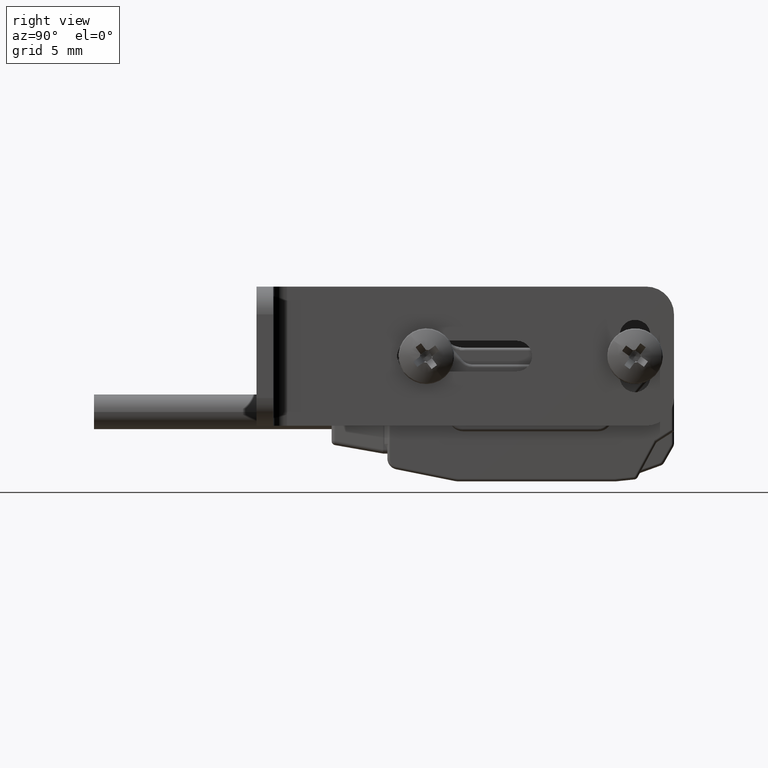
[diagram: clean part render]
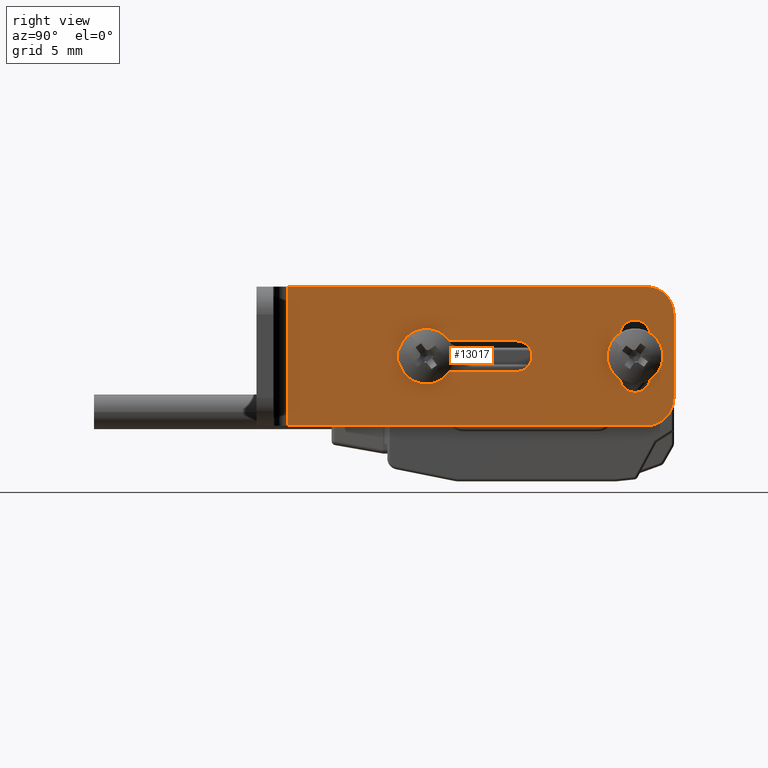
[diagram: same view with one face highlighted and labeled with its STEP entity id]
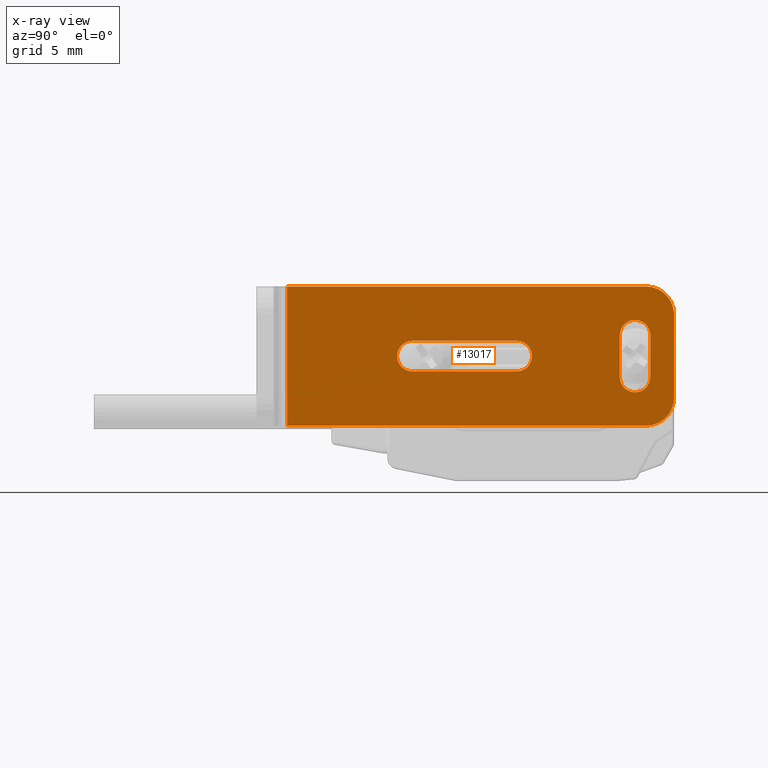
[diagram: x-ray of the same camera — body ghosted, the highlighted face saturated]
A machine part, right view. The second image highlights one B-rep face of the part: STEP entity #13017.
The next image is the same camera in x-ray: the body ghosted, the highlighted face saturated — about 0% of this face is hidden behind the body in this view.
In plain terms, the highlighted planar face has unit normal (-1, -0, -0).
Its self-contained STEP definition (entity closure, byte-faithful):
#209 = VERTEX_POINT ( 'NONE', #1152 ) ;
#247 = DIRECTION ( 'NONE',  ( 0.000000000000000000, 0.000000000000000000, 1.000000000000000000 ) ) ;
#256 = CARTESIAN_POINT ( 'NONE',  ( 4.800000000000002487, -13.55532692569723530, -2.999092722393029042 ) ) ;
#412 = ORIENTED_EDGE ( 'NONE', *, *, #3643, .F. ) ;
#755 = CARTESIAN_POINT ( 'NONE',  ( 4.800000000000002487, 12.54467307430276435, 3.500907277606976731 ) ) ;
#775 = VECTOR ( 'NONE', #5985, 1000.000000000000000 ) ;
#837 = EDGE_CURVE ( 'NONE', #209, #6389, #13950, .T. ) ;
#1146 = AXIS2_PLACEMENT_3D ( 'NONE', #18138, #10631, #4611 ) ;
#1152 = CARTESIAN_POINT ( 'NONE',  ( 4.800000000000002487, 14.24467307430276541, 5.000907277606970958 ) ) ;
#1165 = DIRECTION ( 'NONE',  ( -1.000000000000000000, -1.082107889691983941E-16, -3.869979201885204731E-18 ) ) ;
#1614 = EDGE_CURVE ( 'NONE', #1701, #16881, #1644, .T. ) ;
#1644 = LINE ( 'NONE', #15272, #18296 ) ;
#1701 = VERTEX_POINT ( 'NONE', #9439 ) ;
#1731 = VECTOR ( 'NONE', #9619, 1000.000000000000000 ) ;
#1848 = CARTESIAN_POINT ( 'NONE',  ( 4.800000000000002487, -15.75532692569723459, 0.9009072776069715349 ) ) ;
#1854 = CARTESIAN_POINT ( 'NONE',  ( 4.800000000000002487, 12.24467307430276719, 7.000907277606972734 ) ) ;
#1932 = LINE ( 'NONE', #1848, #1731 ) ;
#2054 = CARTESIAN_POINT ( 'NONE',  ( 4.800000000000002487, -15.75532692569723459, 3.100907277606971935 ) ) ;
#2156 = CARTESIAN_POINT ( 'NONE',  ( 4.800000000000002487, 10.34467307430276328, 3.500907277606976731 ) ) ;
#2208 = CARTESIAN_POINT ( 'NONE',  ( 4.800000000000002487, 14.24467307430276541, 7.000907277606972734 ) ) ;
#2518 = DIRECTION ( 'NONE',  ( -3.869979201885200109E-18, -6.591949208711869424E-17, 1.000000000000000000 ) ) ;
#2520 = DIRECTION ( 'NONE',  ( 1.000000000000000000, 1.082107889691983941E-16, 0.000000000000000000 ) ) ;
#2634 = FACE_BOUND ( 'NONE', #18786, .T. ) ;
#2724 = VECTOR ( 'NONE', #3358, 1000.000000000000000 ) ;
#2915 = DIRECTION ( 'NONE',  ( 0.000000000000000000, 0.000000000000000000, 1.000000000000000000 ) ) ;
#2937 = ORIENTED_EDGE ( 'NONE', *, *, #13461, .T. ) ;
#2960 = VERTEX_POINT ( 'NONE', #11131 ) ;
#3358 = DIRECTION ( 'NONE',  ( 1.082107889691983941E-16, -1.000000000000000000, 7.864079757761529603E-17 ) ) ;
#3643 = EDGE_CURVE ( 'NONE', #209, #8556, #15759, .T. ) ;
#3934 = CIRCLE ( 'NONE', #16262, 2.000000000000000000 ) ;
#4228 = ORIENTED_EDGE ( 'NONE', *, *, #15626, .F. ) ;
#4234 = CIRCLE ( 'NONE', #15288, 1.100000000000000311 ) ;
#4528 = EDGE_CURVE ( 'NONE', #2960, #14912, #13009, .T. ) ;
#4611 = DIRECTION ( 'NONE',  ( 0.000000000000000000, 0.000000000000000000, 1.000000000000000000 ) ) ;
#4825 = ORIENTED_EDGE ( 'NONE', *, *, #9459, .T. ) ;
#4885 = CARTESIAN_POINT ( 'NONE',  ( 4.800000000000002487, -13.55532692569723530, -2.999092722393029042 ) ) ;
#4994 = DIRECTION ( 'NONE',  ( 3.869979201885200109E-18, 6.591949208711869424E-17, -1.000000000000000000 ) ) ;
#5058 = VERTEX_POINT ( 'NONE', #15449 ) ;
#5194 = AXIS2_PLACEMENT_3D ( 'NONE', #12710, #15788, #11325 ) ;
#5293 = ORIENTED_EDGE ( 'NONE', *, *, #4528, .F. ) ;
#5316 = ORIENTED_EDGE ( 'NONE', *, *, #6660, .T. ) ;
#5366 = CARTESIAN_POINT ( 'NONE',  ( 4.800000000000002487, 11.44467307430276826, 3.500907277606976731 ) ) ;
#5510 = CARTESIAN_POINT ( 'NONE',  ( 4.800000000000002487, 10.34467307430276328, 0.5009072776069739552 ) ) ;
#5585 = VECTOR ( 'NONE', #4994, 1000.000000000000000 ) ;
#5746 = VECTOR ( 'NONE', #19036, 1000.000000000000000 ) ;
#5845 = EDGE_CURVE ( 'NONE', #5058, #14119, #10565, .T. ) ;
#5886 = VERTEX_POINT ( 'NONE', #2156 ) ;
#5985 = DIRECTION ( 'NONE',  ( -1.082107889691983941E-16, 1.000000000000000000, 3.503003897882345018E-16 ) ) ;
#6389 = VERTEX_POINT ( 'NONE', #1854 ) ;
#6660 = EDGE_CURVE ( 'NONE', #11313, #16881, #13780, .T. ) ;
#6667 = CARTESIAN_POINT ( 'NONE',  ( 4.800000000000002487, 11.44467307430276826, 4.600907277606973267 ) ) ;
#6785 = AXIS2_PLACEMENT_3D ( 'NONE', #11169, #13770, #247 ) ;
#6899 = CARTESIAN_POINT ( 'NONE',  ( 4.800000000000002487, -15.75532692569723459, -2.999092722393029042 ) ) ;
#6939 = ORIENTED_EDGE ( 'NONE', *, *, #8962, .T. ) ;
#7132 = CIRCLE ( 'NONE', #1146, 1.100000000000000311 ) ;
#7201 = VERTEX_POINT ( 'NONE', #8565 ) ;
#7727 = EDGE_CURVE ( 'NONE', #7852, #14912, #7132, .T. ) ;
#7852 = VERTEX_POINT ( 'NONE', #6667 ) ;
#7893 = EDGE_CURVE ( 'NONE', #14119, #7201, #1932, .T. ) ;
#8227 = ORIENTED_EDGE ( 'NONE', *, *, #1614, .F. ) ;
#8230 = DIRECTION ( 'NONE',  ( 3.869979201885200109E-18, 6.591949208711869424E-17, -1.000000000000000000 ) ) ;
#8233 = DIRECTION ( 'NONE',  ( 0.000000000000000000, 0.000000000000000000, 1.000000000000000000 ) ) ;
#8241 = ORIENTED_EDGE ( 'NONE', *, *, #17744, .T. ) ;
#8296 = EDGE_CURVE ( 'NONE', #2960, #16157, #12146, .T. ) ;
#8556 = VERTEX_POINT ( 'NONE', #13706 ) ;
#8565 = CARTESIAN_POINT ( 'NONE',  ( 4.800000000000002487, -4.555326925697235296, 0.9009072776069715349 ) ) ;
#8668 = EDGE_LOOP ( 'NONE', ( #8227, #8241, #412, #13987, #4228, #5316 ) ) ;
#8734 = CARTESIAN_POINT ( 'NONE',  ( 4.800000000000002487, 12.24467307430276719, 5.000907277606970958 ) ) ;
#8835 = LINE ( 'NONE', #13477, #775 ) ;
#8962 = EDGE_CURVE ( 'NONE', #7201, #16082, #4234, .T. ) ;
#9020 = DIRECTION ( 'NONE',  ( 0.000000000000000000, 0.000000000000000000, 1.000000000000000000 ) ) ;
#9439 = CARTESIAN_POINT ( 'NONE',  ( 4.800000000000002487, 12.24467307430276719, -2.999092722393029042 ) ) ;
#9459 = EDGE_CURVE ( 'NONE', #5886, #7852, #9615, .T. ) ;
#9615 = CIRCLE ( 'NONE', #17520, 1.100000000000000311 ) ;
#9619 = DIRECTION ( 'NONE',  ( 1.082107889691983941E-16, -1.000000000000000000, 1.075528555105617933E-16 ) ) ;
#9938 = CARTESIAN_POINT ( 'NONE',  ( 4.800000000000002487, -4.555326925697235296, 3.100907277606971935 ) ) ;
#10089 = DIRECTION ( 'NONE',  ( 0.000000000000000000, 0.000000000000000000, 1.000000000000000000 ) ) ;
#10177 = EDGE_CURVE ( 'NONE', #5058, #16082, #10962, .T. ) ;
#10181 = DIRECTION ( 'NONE',  ( -1.000000000000000000, -1.082107889691983941E-16, 0.000000000000000000 ) ) ;
#10565 = CIRCLE ( 'NONE', #5194, 1.100000000000000311 ) ;
#10631 = DIRECTION ( 'NONE',  ( -1.000000000000000000, -1.082107889691983941E-16, 0.000000000000000000 ) ) ;
#10962 = LINE ( 'NONE', #2054, #2724 ) ;
#11131 = CARTESIAN_POINT ( 'NONE',  ( 4.800000000000002487, 12.54467307430276435, 0.5009072776069739552 ) ) ;
#11169 = CARTESIAN_POINT ( 'NONE',  ( 4.800000000000002487, 11.44467307430276826, 0.5009072776069739552 ) ) ;
#11313 = VERTEX_POINT ( 'NONE', #15612 ) ;
#11325 = DIRECTION ( 'NONE',  ( 0.000000000000000000, 0.000000000000000000, 1.000000000000000000 ) ) ;
#11504 = VECTOR ( 'NONE', #8230, 1000.000000000000000 ) ;
#11641 = CARTESIAN_POINT ( 'NONE',  ( 4.800000000000002487, 12.54467307430276435, -2.999092722393029042 ) ) ;
#11818 = FACE_OUTER_BOUND ( 'NONE', #8668, .T. ) ;
#12097 = DIRECTION ( 'NONE',  ( 1.082107889691983941E-16, -1.000000000000000000, -6.591949208711869424E-17 ) ) ;
#12146 = CIRCLE ( 'NONE', #6785, 1.100000000000000089 ) ;
#12710 = CARTESIAN_POINT ( 'NONE',  ( 4.800000000000002487, 2.944673074302754934, 2.000907277606975398 ) ) ;
#13009 = LINE ( 'NONE', #11641, #5746 ) ;
#13017 = ADVANCED_FACE ( 'NONE', ( #2634, #14687, #11818 ), #17865, .F. ) ;
#13461 = EDGE_CURVE ( 'NONE', #16157, #5886, #14365, .T. ) ;
#13477 = CARTESIAN_POINT ( 'NONE',  ( 4.800000000000002487, 14.74467307430276541, 7.000907277606972734 ) ) ;
#13706 = CARTESIAN_POINT ( 'NONE',  ( 4.800000000000002487, 14.24467307430276541, -0.9990927223930273771 ) ) ;
#13770 = DIRECTION ( 'NONE',  ( -1.000000000000000000, -1.082107889691983941E-16, 0.000000000000000000 ) ) ;
#13780 = LINE ( 'NONE', #256, #5585 ) ;
#13950 = CIRCLE ( 'NONE', #19314, 2.000000000000000000 ) ;
#13987 = ORIENTED_EDGE ( 'NONE', *, *, #837, .T. ) ;
#14119 = VERTEX_POINT ( 'NONE', #15795 ) ;
#14167 = ORIENTED_EDGE ( 'NONE', *, *, #7893, .T. ) ;
#14212 = ORIENTED_EDGE ( 'NONE', *, *, #8296, .T. ) ;
#14365 = LINE ( 'NONE', #17431, #16020 ) ;
#14687 = FACE_BOUND ( 'NONE', #16375, .T. ) ;
#14912 = VERTEX_POINT ( 'NONE', #755 ) ;
#15272 = CARTESIAN_POINT ( 'NONE',  ( 4.800000000000002487, 14.74467307430276541, -2.999092722393029042 ) ) ;
#15288 = AXIS2_PLACEMENT_3D ( 'NONE', #18617, #17048, #8233 ) ;
#15449 = CARTESIAN_POINT ( 'NONE',  ( 4.800000000000002487, 2.944673074302754934, 3.100907277606971935 ) ) ;
#15612 = CARTESIAN_POINT ( 'NONE',  ( 4.800000000000002487, -13.55532692569723530, 7.000907277606972734 ) ) ;
#15626 = EDGE_CURVE ( 'NONE', #11313, #6389, #8835, .T. ) ;
#15759 = LINE ( 'NONE', #2208, #11504 ) ;
#15788 = DIRECTION ( 'NONE',  ( -1.000000000000000000, -1.082107889691983941E-16, 0.000000000000000000 ) ) ;
#15795 = CARTESIAN_POINT ( 'NONE',  ( 4.800000000000002487, 2.944673074302754934, 0.9009072776069715349 ) ) ;
#16020 = VECTOR ( 'NONE', #2518, 1000.000000000000000 ) ;
#16082 = VERTEX_POINT ( 'NONE', #9938 ) ;
#16157 = VERTEX_POINT ( 'NONE', #5510 ) ;
#16262 = AXIS2_PLACEMENT_3D ( 'NONE', #17539, #2520, #2915 ) ;
#16375 = EDGE_LOOP ( 'NONE', ( #14167, #6939, #17004, #18625 ) ) ;
#16881 = VERTEX_POINT ( 'NONE', #4885 ) ;
#17004 = ORIENTED_EDGE ( 'NONE', *, *, #10177, .F. ) ;
#17048 = DIRECTION ( 'NONE',  ( -1.000000000000000000, -1.082107889691983941E-16, 0.000000000000000000 ) ) ;
#17431 = CARTESIAN_POINT ( 'NONE',  ( 4.800000000000002487, 10.34467307430276328, -2.999092722393029042 ) ) ;
#17520 = AXIS2_PLACEMENT_3D ( 'NONE', #5366, #10181, #10089 ) ;
#17539 = CARTESIAN_POINT ( 'NONE',  ( 4.800000000000002487, 12.24467307430276719, -0.9990927223930273771 ) ) ;
#17744 = EDGE_CURVE ( 'NONE', #1701, #8556, #3934, .T. ) ;
#17865 = PLANE ( 'NONE',  #18830 ) ;
#18022 = DIRECTION ( 'NONE',  ( 1.000000000000000000, 1.082107889691983941E-16, 0.000000000000000000 ) ) ;
#18138 = CARTESIAN_POINT ( 'NONE',  ( 4.800000000000002487, 11.44467307430276826, 3.500907277606976731 ) ) ;
#18296 = VECTOR ( 'NONE', #12097, 1000.000000000000000 ) ;
#18617 = CARTESIAN_POINT ( 'NONE',  ( 4.800000000000002487, -4.555326925697235296, 2.000907277606975398 ) ) ;
#18625 = ORIENTED_EDGE ( 'NONE', *, *, #5845, .T. ) ;
#18786 = EDGE_LOOP ( 'NONE', ( #5293, #14212, #2937, #4825, #19310 ) ) ;
#18830 = AXIS2_PLACEMENT_3D ( 'NONE', #6899, #1165, #18932 ) ;
#18932 = DIRECTION ( 'NONE',  ( -1.082107889691983941E-16, 1.000000000000000000, 0.000000000000000000 ) ) ;
#19036 = DIRECTION ( 'NONE',  ( -3.869979201885200109E-18, -6.591949208711869424E-17, 1.000000000000000000 ) ) ;
#19310 = ORIENTED_EDGE ( 'NONE', *, *, #7727, .T. ) ;
#19314 = AXIS2_PLACEMENT_3D ( 'NONE', #8734, #18022, #9020 ) ;